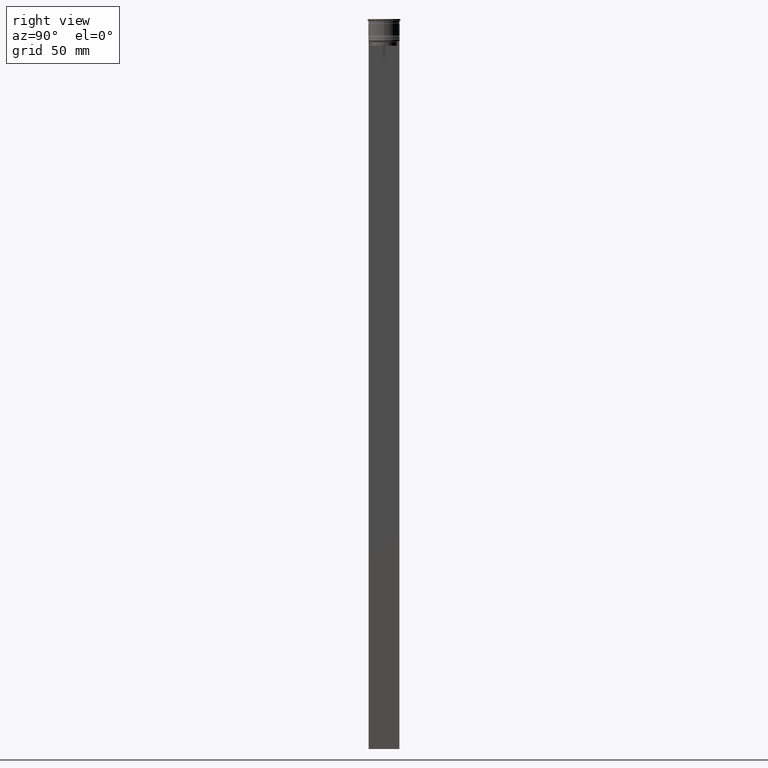
[diagram: clean part render]
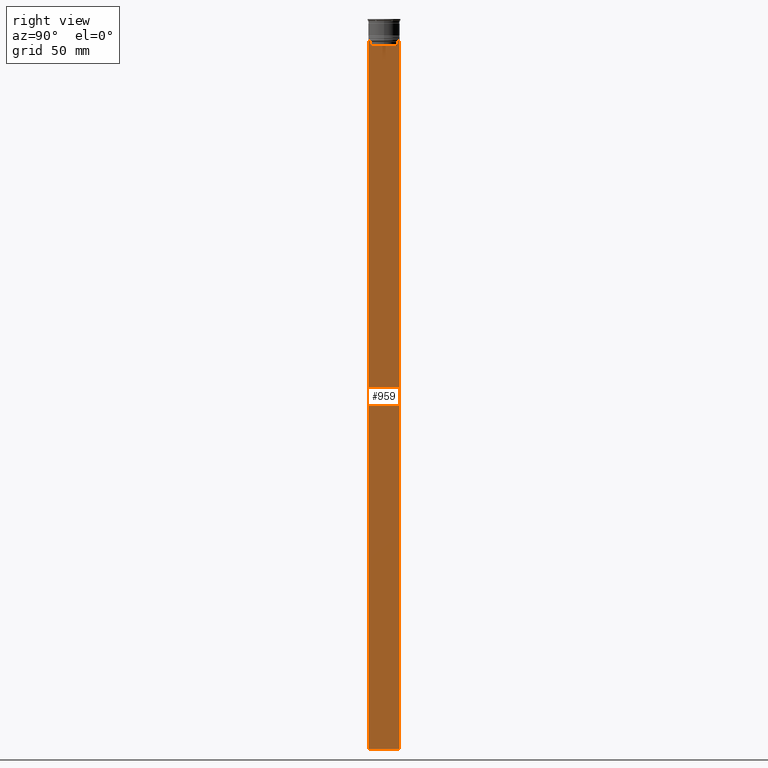
[diagram: same view with one face highlighted and labeled with its STEP entity id]
A machine part, right view. The second image highlights one B-rep face of the part: STEP entity #959.
In plain terms, the highlighted planar face has unit normal (-1, 0, 0).
Its self-contained STEP definition (entity closure, byte-faithful):
#14 = VERTEX_POINT ( 'NONE', #466 ) ;
#41 = VERTEX_POINT ( 'NONE', #2465 ) ;
#108 = ORIENTED_EDGE ( 'NONE', *, *, #2432, .F. ) ;
#123 = VERTEX_POINT ( 'NONE', #151 ) ;
#147 = CARTESIAN_POINT ( 'NONE',  ( 0.4999999999999998890, -9.749999999999998224, -14.00000000000000178 ) ) ;
#151 = CARTESIAN_POINT ( 'NONE',  ( 0.4999999999999998890, 8.385105843100616241, -17.00000000000000000 ) ) ;
#154 = B_SPLINE_CURVE_WITH_KNOTS ( 'NONE', 3,
 ( #2350, #2376, #592, #2386 ),
 .UNSPECIFIED., .F., .F.,
 ( 4, 4 ),
 ( 0.01511546479386908018, 0.01582316445439079997 ),
 .UNSPECIFIED. ) ;
#180 = LINE ( 'NONE', #1382, #1569 ) ;
#210 = DIRECTION ( 'NONE',  ( 0.000000000000000000, 0.000000000000000000, 1.000000000000000000 ) ) ;
#248 = ORIENTED_EDGE ( 'NONE', *, *, #2174, .T. ) ;
#395 = DIRECTION ( 'NONE',  ( 0.000000000000000000, 0.000000000000000000, -1.000000000000000000 ) ) ;
#466 = CARTESIAN_POINT ( 'NONE',  ( 0.4999999999999998890, -8.385105843100616241, -17.00000000000000000 ) ) ;
#469 = CARTESIAN_POINT ( 'NONE',  ( 0.4999999999999998890, -8.719005764482787413, -14.16667454151160044 ) ) ;
#511 = CARTESIAN_POINT ( 'NONE',  ( 0.4999999999999998890, -8.385105843100616241, -14.50000000000000000 ) ) ;
#515 = CARTESIAN_POINT ( 'NONE',  ( 0.4999999999999998890, -9.749999999999998224, -14.00000000000000178 ) ) ;
#523 = ORIENTED_EDGE ( 'NONE', *, *, #2303, .T. ) ;
#551 = EDGE_CURVE ( 'NONE', #1240, #691, #1751, .T. ) ;
#592 = CARTESIAN_POINT ( 'NONE',  ( 0.4999999999999998890, 8.552060201981378285, -14.33334167021640582 ) ) ;
#672 = CARTESIAN_POINT ( 'NONE',  ( 0.4999999999999998890, -9.749999999999998224, -464.0000000000000000 ) ) ;
#682 = CARTESIAN_POINT ( 'NONE',  ( 0.4999999999999998890, -8.385105843100616241, 0.000000000000000000 ) ) ;
#691 = VERTEX_POINT ( 'NONE', #2213 ) ;
#715 = CARTESIAN_POINT ( 'NONE',  ( 0.4999999999999998890, 9.750000000000001776, -14.00000000000000178 ) ) ;
#747 = ORIENTED_EDGE ( 'NONE', *, *, #2139, .T. ) ;
#757 = DIRECTION ( 'NONE',  ( 0.000000000000000000, 0.000000000000000000, -1.000000000000000000 ) ) ;
#778 = LINE ( 'NONE', #2393, #912 ) ;
#785 = VECTOR ( 'NONE', #1385, 1000.000000000000000 ) ;
#830 = EDGE_CURVE ( 'NONE', #1990, #2480, #1049, .T. ) ;
#860 = CARTESIAN_POINT ( 'NONE',  ( 0.4999999999999998890, 8.385105843100616241, -14.50000000000000000 ) ) ;
#886 = VERTEX_POINT ( 'NONE', #860 ) ;
#912 = VECTOR ( 'NONE', #395, 1000.000000000000000 ) ;
#959 = ADVANCED_FACE ( 'NONE', ( #1822 ), #2032, .F. ) ;
#960 = ORIENTED_EDGE ( 'NONE', *, *, #1521, .T. ) ;
#969 = CARTESIAN_POINT ( 'NONE',  ( 0.4999999999999998890, -9.749999999999998224, -14.00000000000000178 ) ) ;
#984 = VECTOR ( 'NONE', #2104, 1000.000000000000000 ) ;
#1017 = ORIENTED_EDGE ( 'NONE', *, *, #1128, .T. ) ;
#1049 = B_SPLINE_CURVE_WITH_KNOTS ( 'NONE', 3,
 ( #1096, #1061, #469, #2239 ),
 .UNSPECIFIED., .F., .F.,
 ( 4, 4 ),
 ( 0.03898465126933130243, 0.03969388910599658260 ),
 .UNSPECIFIED. ) ;
#1050 = CARTESIAN_POINT ( 'NONE',  ( 0.4999999999999998890, -9.749999999999998224, 5.525624189766635830 ) ) ;
#1061 = CARTESIAN_POINT ( 'NONE',  ( 0.4999999999999998890, -8.552060194457768105, -14.33334167772667556 ) ) ;
#1096 = CARTESIAN_POINT ( 'NONE',  ( 0.4999999999999998890, -8.385105843100616241, -14.50000000000000000 ) ) ;
#1105 = ORIENTED_EDGE ( 'NONE', *, *, #2006, .T. ) ;
#1128 = EDGE_CURVE ( 'NONE', #2480, #1205, #1906, .T. ) ;
#1205 = VERTEX_POINT ( 'NONE', #515 ) ;
#1212 = DIRECTION ( 'NONE',  ( 0.000000000000000000, 0.000000000000000000, -1.000000000000000000 ) ) ;
#1240 = VERTEX_POINT ( 'NONE', #715 ) ;
#1341 = ORIENTED_EDGE ( 'NONE', *, *, #551, .T. ) ;
#1382 = CARTESIAN_POINT ( 'NONE',  ( 0.4999999999999998890, -9.749999999999998224, -464.0000000000000000 ) ) ;
#1385 = DIRECTION ( 'NONE',  ( 0.000000000000000000, -1.000000000000000000, 0.000000000000000000 ) ) ;
#1465 = ORIENTED_EDGE ( 'NONE', *, *, #1824, .T. ) ;
#1475 = DIRECTION ( 'NONE',  ( -0.000000000000000000, -0.000000000000000000, 1.000000000000000000 ) ) ;
#1498 = LINE ( 'NONE', #682, #1656 ) ;
#1503 = LINE ( 'NONE', #2314, #1945 ) ;
#1521 = EDGE_CURVE ( 'NONE', #886, #123, #1847, .T. ) ;
#1529 = DIRECTION ( 'NONE',  ( 0.000000000000000000, -1.000000000000000000, 0.000000000000000000 ) ) ;
#1569 = VECTOR ( 'NONE', #2572, 1000.000000000000000 ) ;
#1575 = CARTESIAN_POINT ( 'NONE',  ( 0.4999999999999998890, 8.400000000000003908, -17.00000000000000000 ) ) ;
#1620 = CARTESIAN_POINT ( 'NONE',  ( 0.4999999999999998890, -8.885943956609230199, -14.00000000000000178 ) ) ;
#1623 = ORIENTED_EDGE ( 'NONE', *, *, #830, .T. ) ;
#1656 = VECTOR ( 'NONE', #1475, 1000.000000000000000 ) ;
#1751 = LINE ( 'NONE', #969, #984 ) ;
#1822 = FACE_OUTER_BOUND ( 'NONE', #2327, .T. ) ;
#1824 = EDGE_CURVE ( 'NONE', #123, #14, #2577, .T. ) ;
#1847 = LINE ( 'NONE', #2269, #2410 ) ;
#1906 = LINE ( 'NONE', #147, #2575 ) ;
#1934 = VERTEX_POINT ( 'NONE', #672 ) ;
#1945 = VECTOR ( 'NONE', #757, 1000.000000000000000 ) ;
#1978 = DIRECTION ( 'NONE',  ( -1.000000000000000000, 0.000000000000000000, 0.000000000000000000 ) ) ;
#1990 = VERTEX_POINT ( 'NONE', #511 ) ;
#2006 = EDGE_CURVE ( 'NONE', #14, #1990, #1498, .T. ) ;
#2032 = PLANE ( 'NONE',  #2449 ) ;
#2104 = DIRECTION ( 'NONE',  ( 0.000000000000000000, -1.000000000000000000, 0.000000000000000000 ) ) ;
#2139 = EDGE_CURVE ( 'NONE', #1934, #41, #180, .T. ) ;
#2174 = EDGE_CURVE ( 'NONE', #691, #886, #154, .T. ) ;
#2213 = CARTESIAN_POINT ( 'NONE',  ( 0.4999999999999998890, 8.885943956609230199, -14.00000000000000178 ) ) ;
#2239 = CARTESIAN_POINT ( 'NONE',  ( 0.4999999999999998890, -8.885943956609230199, -14.00000000000000178 ) ) ;
#2269 = CARTESIAN_POINT ( 'NONE',  ( 0.4999999999999998890, 8.385105843100616241, 0.000000000000000000 ) ) ;
#2303 = EDGE_CURVE ( 'NONE', #1205, #1934, #1503, .T. ) ;
#2314 = CARTESIAN_POINT ( 'NONE',  ( 0.4999999999999998890, -9.749999999999998224, 5.525624189766635830 ) ) ;
#2327 = EDGE_LOOP ( 'NONE', ( #1341, #248, #960, #1465, #1105, #1623, #1017, #523, #747, #108 ) ) ;
#2350 = CARTESIAN_POINT ( 'NONE',  ( 0.4999999999999998890, 8.885943956609230199, -14.00000000000000178 ) ) ;
#2376 = CARTESIAN_POINT ( 'NONE',  ( 0.4999999999999998890, 8.719005771582347464, -14.16667453442325453 ) ) ;
#2386 = CARTESIAN_POINT ( 'NONE',  ( 0.4999999999999998890, 8.385105843100616241, -14.50000000000000000 ) ) ;
#2393 = CARTESIAN_POINT ( 'NONE',  ( 0.4999999999999998890, 9.750000000000001776, 5.525624189766635830 ) ) ;
#2410 = VECTOR ( 'NONE', #1212, 1000.000000000000000 ) ;
#2432 = EDGE_CURVE ( 'NONE', #1240, #41, #778, .T. ) ;
#2449 = AXIS2_PLACEMENT_3D ( 'NONE', #1050, #1978, #210 ) ;
#2465 = CARTESIAN_POINT ( 'NONE',  ( 0.4999999999999998890, 9.750000000000001776, -464.0000000000000000 ) ) ;
#2480 = VERTEX_POINT ( 'NONE', #1620 ) ;
#2572 = DIRECTION ( 'NONE',  ( 0.000000000000000000, 1.000000000000000000, 0.000000000000000000 ) ) ;
#2575 = VECTOR ( 'NONE', #1529, 1000.000000000000000 ) ;
#2577 = LINE ( 'NONE', #1575, #785 ) ;